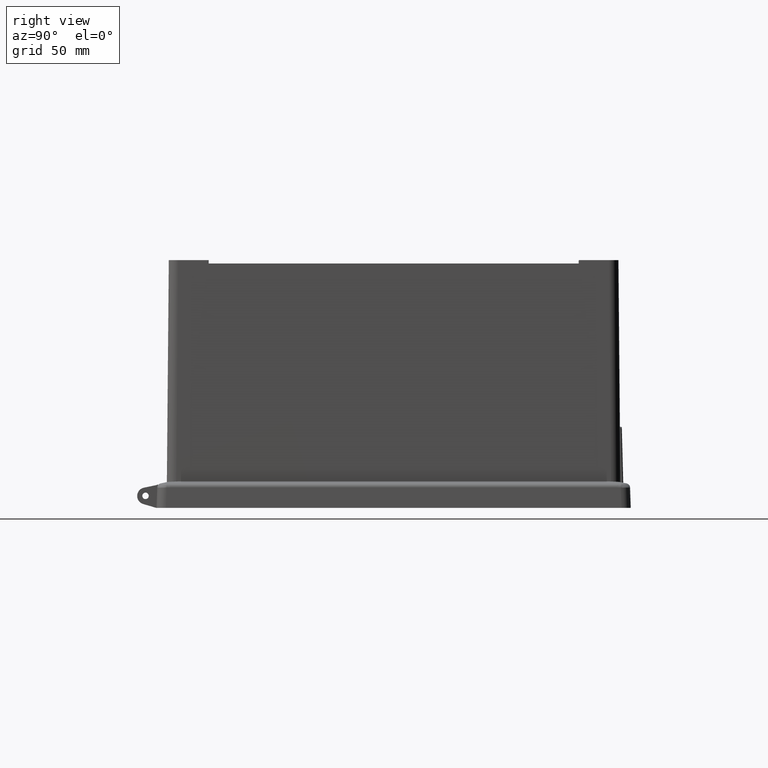
[diagram: clean part render]
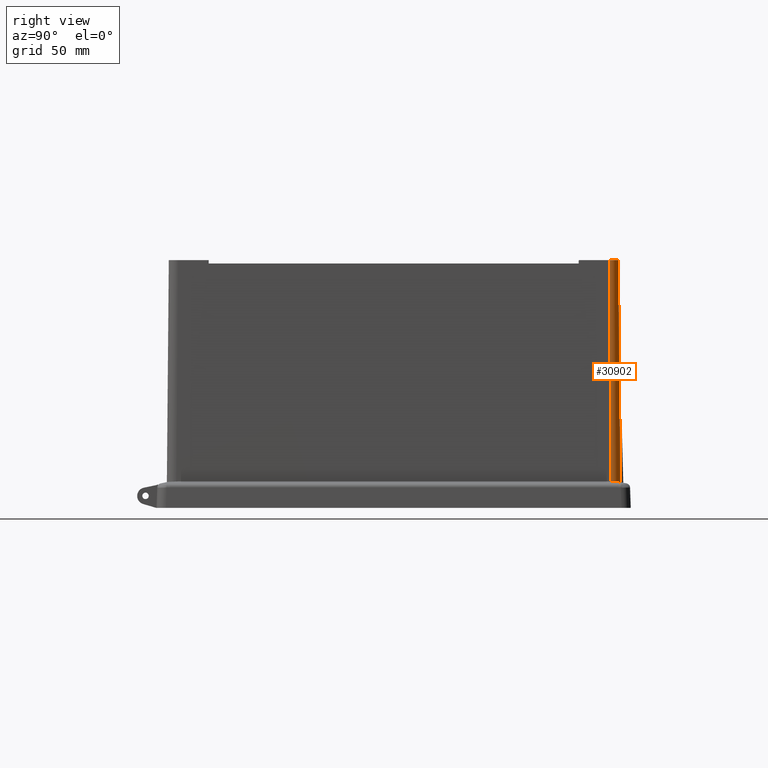
[diagram: same view with one face highlighted and labeled with its STEP entity id]
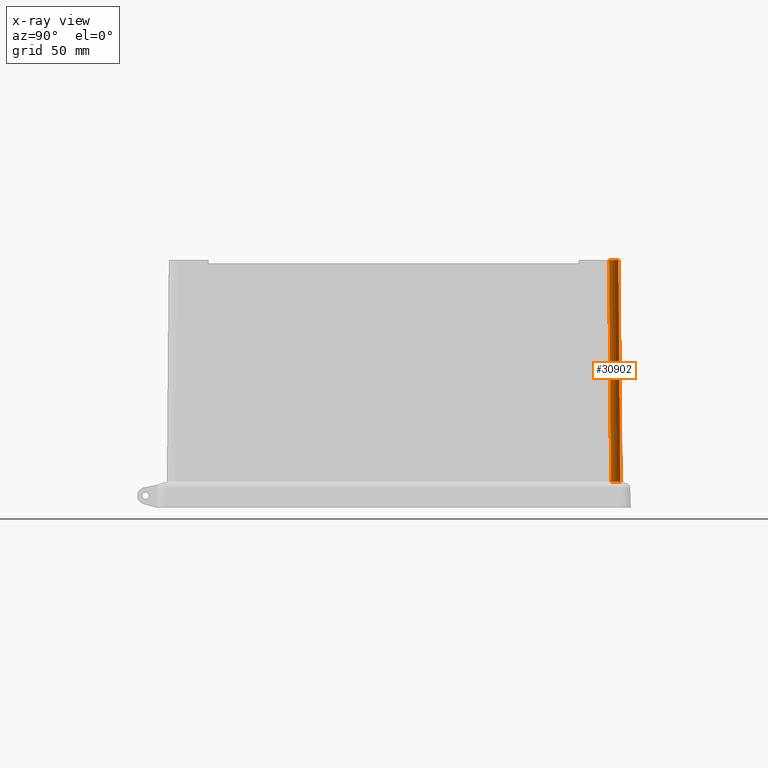
[diagram: x-ray of the same camera — body ghosted, the highlighted face saturated]
A machine part, right view. The second image highlights one B-rep face of the part: STEP entity #30902.
The next image is the same camera in x-ray: the body ghosted, the highlighted face saturated — about 0% of this face is hidden behind the body in this view.
In plain terms, the highlighted cylindrical surface (edge-blend (fillet) strip) has radius 5.5 mm, axis along (-0.0087, -0.0087, 0.9999).
Its self-contained STEP definition (entity closure, byte-faithful):
#17013 = CARTESIAN_POINT ( 'NONE',  ( 129.1401959672070900, 133.0882400418754800, 15.24866105993764300 ) ) ;
#17014 = CARTESIAN_POINT ( 'NONE',  ( 128.5909649795505300, 133.2669564909511500, 15.21066323235245400 ) ) ;
#17015 = CARTESIAN_POINT ( 'NONE',  ( 128.0204378168413900, 133.3574264166923900, 15.19142795402334300 ) ) ;
#17016 = CARTESIAN_POINT ( 'NONE',  ( 127.4426358398394400, 133.3574264166923900, 15.19142795402333900 ) ) ;
#17018 =( BOUNDED_CURVE ( )  B_SPLINE_CURVE ( 3, ( #17016, #17015, #17014, #17013 ),
 .UNSPECIFIED., .F., .T. ) 
 B_SPLINE_CURVE_WITH_KNOTS ( ( 4, 4 ),
 ( 3.102262029020584200, 3.416119622175298500 ),
 .UNSPECIFIED. ) 
 CURVE ( )  GEOMETRIC_REPRESENTATION_ITEM ( )  RATIONAL_B_SPLINE_CURVE ( ( 1.000000000000000000, 0.9918079502161891700, 0.9918079502161891700, 1.000000000000000000 ) ) 
 REPRESENTATION_ITEM ( '' )  );
#17035 = DIRECTION ( 'NONE',  ( 0.008726203243944193100, 0.008726203243943979700, -0.9999238504775704900 ) ) ;
#17036 = VECTOR ( 'NONE', #17035, 1000.000000000000000 ) ;
#17037 = CARTESIAN_POINT ( 'NONE',  ( 131.8030590194969100, 126.7182684426440000, 145.7500000000000000 ) ) ;
#17038 = CARTESIAN_POINT ( 'NONE',  ( 131.8030590194969100, 126.7182684426440000, 145.7500000000000000 ) ) ;
#17039 = CARTESIAN_POINT ( 'NONE',  ( 131.8030590194969400, 129.9400219819261800, 145.7500000000000000 ) ) ;
#17040 = CARTESIAN_POINT ( 'NONE',  ( 129.5250219819261300, 132.2180590194969300, 145.7500000000000000 ) ) ;
#17041 = CARTESIAN_POINT ( 'NONE',  ( 126.3032684426439700, 132.2180590194969100, 145.7500000000000000 ) ) ;
#17042 =( BOUNDED_CURVE ( )  B_SPLINE_CURVE ( 3, ( #17041, #17040, #17039, #17038 ),
 .UNSPECIFIED., .F., .T. ) 
 B_SPLINE_CURVE_WITH_KNOTS ( ( 4, 4 ),
 ( 2.356232566403281900, 3.926952740776298500 ),
 .UNSPECIFIED. ) 
 CURVE ( )  GEOMETRIC_REPRESENTATION_ITEM ( )  RATIONAL_B_SPLINE_CURVE ( ( 1.000000000000000000, 0.8047558030806116800, 0.8047558030806116800, 1.000000000000000000 ) ) 
 REPRESENTATION_ITEM ( '' )  );
#17043 = LINE ( 'NONE', #17037, #17036 ) ;
#17044 = CARTESIAN_POINT ( 'NONE',  ( 131.8030590194969100, 126.7182684426440000, 145.7500000000000000 ) ) ;
#17045 = CARTESIAN_POINT ( 'NONE',  ( 126.3032684426439700, 132.2180590194969100, 145.7500000000000000 ) ) ;
#17046 = DIRECTION ( 'NONE',  ( -0.008726203243944054300, -0.008726203243944267600, 0.9999238504775704900 ) ) ;
#17047 = VECTOR ( 'NONE', #17046, 1000.000000000000000 ) ;
#17048 = CARTESIAN_POINT ( 'NONE',  ( 127.4426358398394400, 133.3574264166923900, 15.19142795402333800 ) ) ;
#17049 = LINE ( 'NONE', #17048, #17047 ) ;
#17050 = CARTESIAN_POINT ( 'NONE',  ( 129.1401959672070900, 133.0882400418754800, 15.24866105993764300 ) ) ;
#17051 = CARTESIAN_POINT ( 'NONE',  ( 127.4426358398394400, 133.3574264166923900, 15.19142795402333900 ) ) ;
#17165 = CARTESIAN_POINT ( 'NONE',  ( 132.0619707509532600, 130.8514493252755000, 15.41830861398039700 ) ) ;
#17166 = CARTESIAN_POINT ( 'NONE',  ( 132.2114453032449100, 130.6067141892083900, 15.42910246007002200 ) ) ;
#17167 = CARTESIAN_POINT ( 'NONE',  ( 132.4713939469101800, 130.0956572490700900, 15.45114032917979700 ) ) ;
#17168 = CARTESIAN_POINT ( 'NONE',  ( 132.5824135605237500, 129.8275883453543400, 15.46245530035239600 ) ) ;
#17169 = CARTESIAN_POINT ( 'NONE',  ( 132.8500243003017300, 129.0013074772499000, 15.49785997688055900 ) ) ;
#17170 = CARTESIAN_POINT ( 'NONE',  ( 132.9395343091336200, 128.4354026554359200, 15.52262894113964200 ) ) ;
#17171 = CARTESIAN_POINT ( 'NONE',  ( 132.9461391434843400, 127.8544383029311700, 15.55181337299343600 ) ) ;
#17181 = B_SPLINE_CURVE_WITH_KNOTS ( 'NONE', 3,
 ( #17171, #17170, #17169, #17168, #17167, #17166, #17165, #17226, #17225, #17224, #17223, #17222, #17221, #17220, #17219, #17218 ),
 .UNSPECIFIED., .F., .F.,
 ( 4, 2, 2, 2, 2, 2, 2, 4 ),
 ( 2.780973288783981700E-017, 0.001720309271417378300, 0.002580463907126066000, 0.003440618542834754000, 0.004300773178543442100, 0.005160927814252129300, 0.006021082449960816500, 0.006881237085669504600 ),
 .UNSPECIFIED. ) ;
#17184 = CARTESIAN_POINT ( 'NONE',  ( 132.9461391434843400, 127.8544383029311700, 15.55181337299343600 ) ) ;
#17218 = CARTESIAN_POINT ( 'NONE',  ( 129.1401959672070900, 133.0882400418754800, 15.24866105993764300 ) ) ;
#17219 = CARTESIAN_POINT ( 'NONE',  ( 129.4161791076085100, 132.9984367933956800, 15.26775459256975900 ) ) ;
#17220 = CARTESIAN_POINT ( 'NONE',  ( 129.6826066540626000, 132.8877468959460400, 15.28369735777590000 ) ) ;
#17221 = CARTESIAN_POINT ( 'NONE',  ( 130.1965026646888600, 132.6253948603448700, 15.31298367486322900 ) ) ;
#17222 = CARTESIAN_POINT ( 'NONE',  ( 130.4454507753191000, 132.4724012401237000, 15.32629293083574000 ) ) ;
#17223 = CARTESIAN_POINT ( 'NONE',  ( 130.9106693237472700, 132.1333916733296400, 15.35113020742624500 ) ) ;
#17224 = CARTESIAN_POINT ( 'NONE',  ( 131.1283094006869600, 131.9470147830841400, 15.36270743062364900 ) ) ;
#17225 = CARTESIAN_POINT ( 'NONE',  ( 131.5338706790565200, 131.5408330565417100, 15.38530265783785100 ) ) ;
#17226 = CARTESIAN_POINT ( 'NONE',  ( 131.7232385217173800, 131.3188653094910300, 15.39640230158375500 ) ) ;
#17256 = FACE_OUTER_BOUND ( 'NONE', #30841, .T. ) ;
#17282 = DIRECTION ( 'NONE',  ( 0.9999619230641713100, 0.0000000000000000000, 0.008726535498372239900 ) ) ;
#17283 = DIRECTION ( 'NONE',  ( -0.008726203243944090700, -0.008726203243944089000, 0.9999238504775704900 ) ) ;
#17284 = AXIS2_PLACEMENT_3D ( 'NONE', #17286, #17283, #17282 ) ;
#17285 = CYLINDRICAL_SURFACE ( 'NONE', #17284, 5.499999999999988500 ) ;
#17286 = CARTESIAN_POINT ( 'NONE',  ( 126.2974964789828100, 126.7124964789828000, 146.3634055792876400 ) ) ;
#30818 = EDGE_CURVE ( 'NONE', #30819, #30820, #17018, .T. ) ;
#30819 = VERTEX_POINT ( 'NONE', #17051 ) ;
#30820 = VERTEX_POINT ( 'NONE', #17050 ) ;
#30821 = ORIENTED_EDGE ( 'NONE', *, *, #30822, .T. ) ;
#30822 = EDGE_CURVE ( 'NONE', #30819, #30823, #17049, .T. ) ;
#30823 = VERTEX_POINT ( 'NONE', #17045 ) ;
#30824 = ORIENTED_EDGE ( 'NONE', *, *, #30825, .T. ) ;
#30825 = EDGE_CURVE ( 'NONE', #30823, #30826, #17042, .T. ) ;
#30826 = VERTEX_POINT ( 'NONE', #17044 ) ;
#30827 = ORIENTED_EDGE ( 'NONE', *, *, #30828, .T. ) ;
#30828 = EDGE_CURVE ( 'NONE', #30826, #30888, #17043, .T. ) ;
#30841 = EDGE_LOOP ( 'NONE', ( #30903, #30821, #30824, #30827, #30889 ) ) ;
#30888 = VERTEX_POINT ( 'NONE', #17184 ) ;
#30889 = ORIENTED_EDGE ( 'NONE', *, *, #30890, .T. ) ;
#30890 = EDGE_CURVE ( 'NONE', #30888, #30820, #17181, .T. ) ;
#30902 = ADVANCED_FACE ( 'NONE', ( #17256 ), #17285, .T. ) ;
#30903 = ORIENTED_EDGE ( 'NONE', *, *, #30818, .F. ) ;